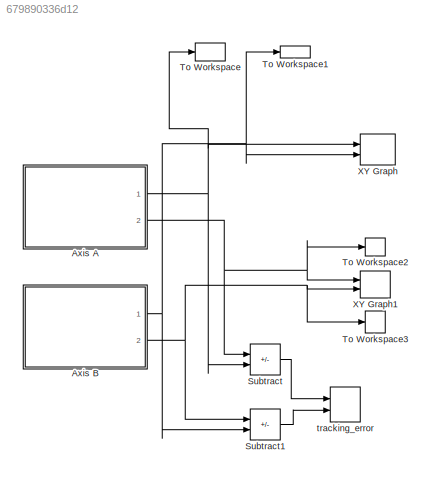
MODEL slx_679890336d12
KIND model
CONFIG AbsTol = auto
CONFIG EnableMultiTasking = off
CONFIG FixedStep = Ts
CONFIG MaxStep = auto
CONFIG MinStep = auto
CONFIG RelTol = 1000000
CONFIG SampleTimeConstraint = Unconstrained
CONFIG SolverName = FixedStepAuto
CONFIG StartTime = 0.0
CONFIG StopTime = 20
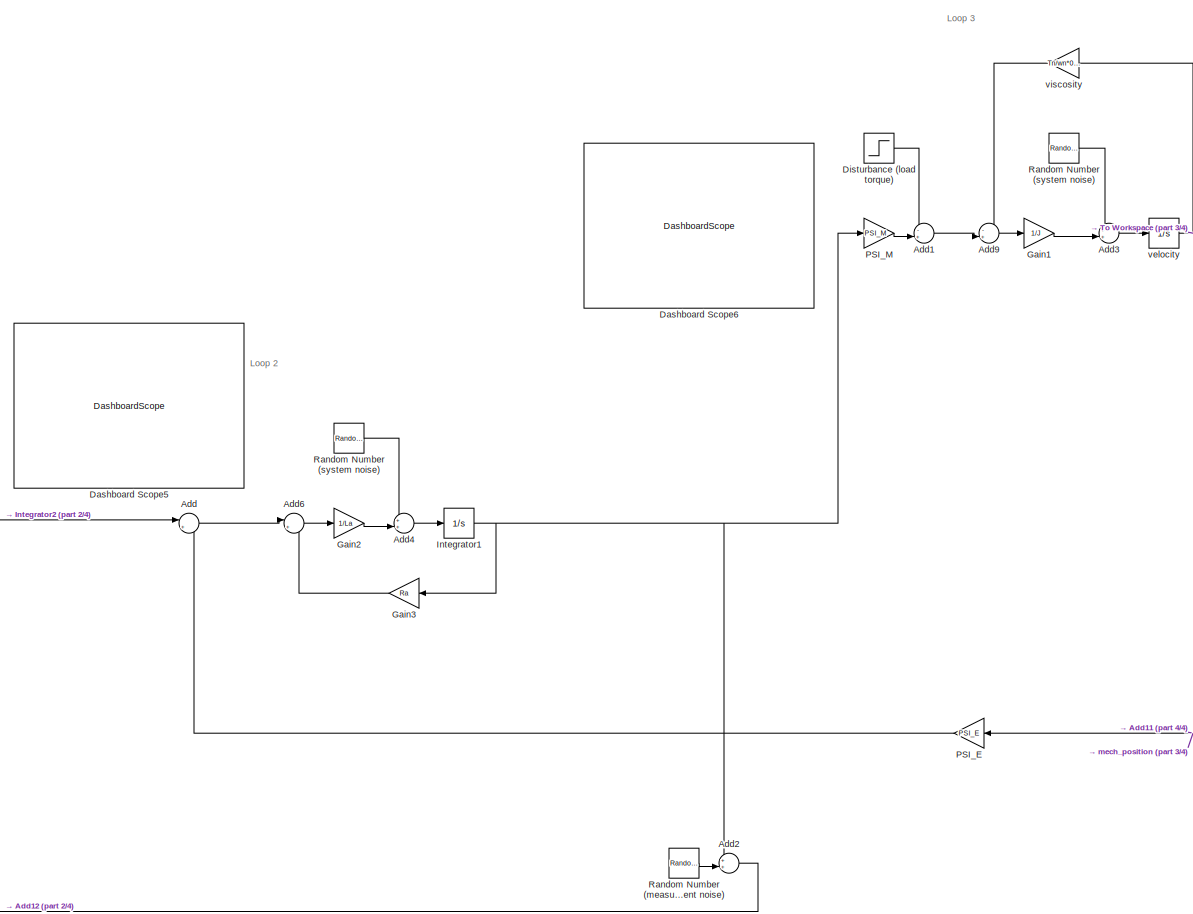
[diagram: Axis A - part 1/4, center side, full height]
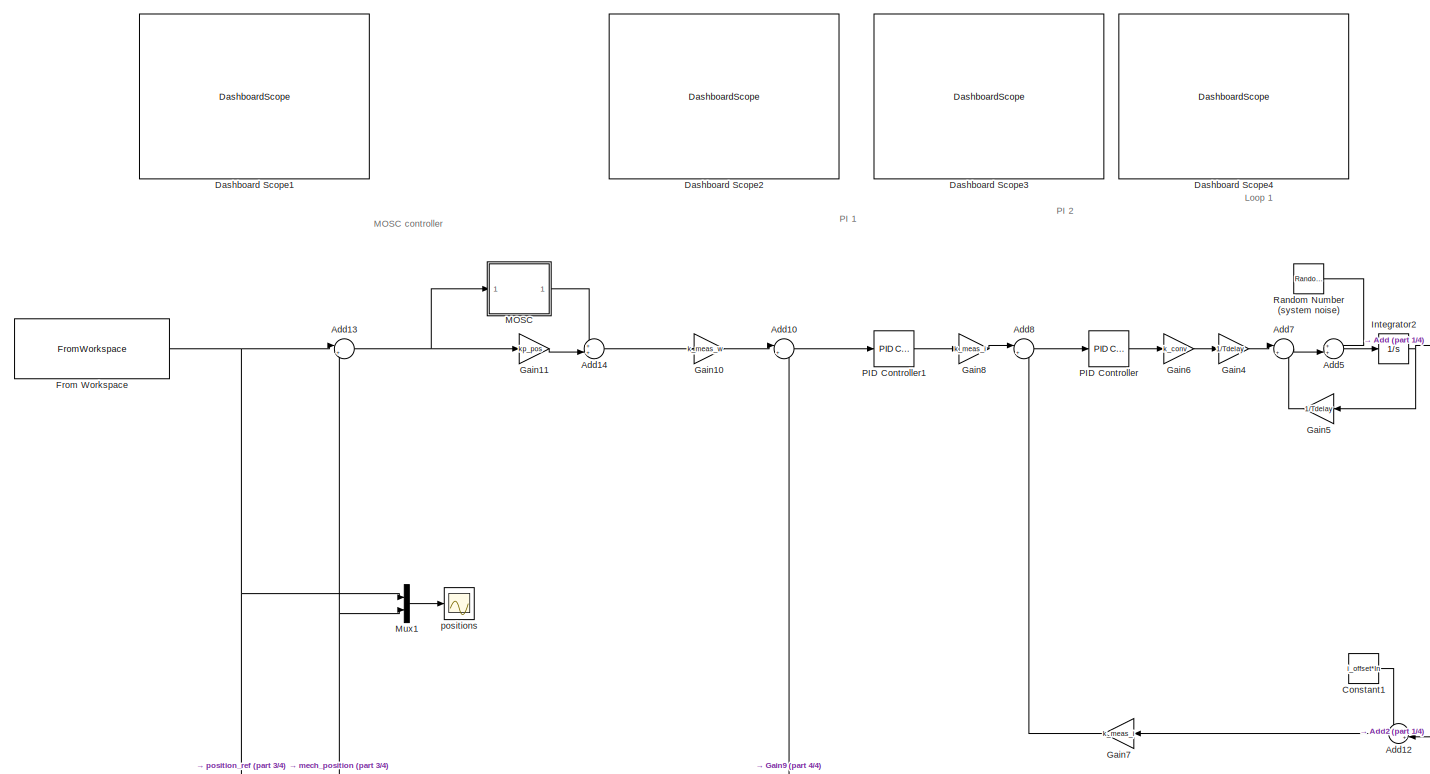
[diagram: Axis A - part 2/4, middle left region]
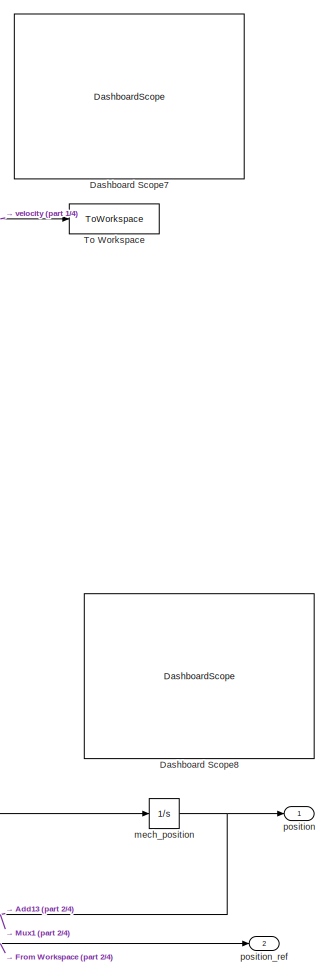
[diagram: Axis A - part 3/4, right side, full height]
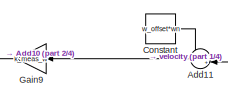
[diagram: Axis A - part 4/4, bottom center region]
BLOCK [SubSystem] Axis A
  Ports = [0, 2]
  RequestExecContextInheritance = off
BLOCK [Sum] Axis A/Add
  Inputs = |+-
  Ports = [2, 1]
BLOCK [Sum] Axis A/Add1
  Inputs = -+|
  Ports = [2, 1]
BLOCK [Sum] Axis A/Add10
  Inputs = |+-
  Ports = [2, 1]
BLOCK [Sum] Axis A/Add11
  Inputs = ++|
  NameLocation = top
  Ports = [2, 1]
BLOCK [Sum] Axis A/Add12
  Inputs = ++|
  NameLocation = top
  Ports = [2, 1]
BLOCK [Sum] Axis A/Add13
  Inputs = |+-
  Ports = [2, 1]
BLOCK [Sum] Axis A/Add14
  Inputs = ++|
  Ports = [2, 1]
BLOCK [Sum] Axis A/Add2
  Inputs = ++|
  Ports = [2, 1]
BLOCK [Sum] Axis A/Add3
  Inputs = ++|
  Ports = [2, 1]
BLOCK [Sum] Axis A/Add4
  Inputs = ++|
  Ports = [2, 1]
BLOCK [Sum] Axis A/Add5
  Inputs = ++|
  Ports = [2, 1]
BLOCK [Sum] Axis A/Add6
  Inputs = |+-
  Ports = [2, 1]
BLOCK [Sum] Axis A/Add7
  Inputs = |+-
  Ports = [2, 1]
BLOCK [Sum] Axis A/Add8
  Inputs = |+-
  Ports = [2, 1]
BLOCK [Sum] Axis A/Add9
  Inputs = -+|
  Ports = [2, 1]
BLOCK [Constant] Axis A/Constant
  Value = w_offset*wn
BLOCK [Constant] Axis A/Constant1
  Value = i_offset*In
BLOCK [DashboardScope] Axis A/Dashboard Scope1
BLOCK [DashboardScope] Axis A/Dashboard Scope2
BLOCK [DashboardScope] Axis A/Dashboard Scope3
BLOCK [DashboardScope] Axis A/Dashboard Scope4
BLOCK [DashboardScope] Axis A/Dashboard Scope5
BLOCK [DashboardScope] Axis A/Dashboard Scope6
BLOCK [DashboardScope] Axis A/Dashboard Scope7
BLOCK [DashboardScope] Axis A/Dashboard Scope8
BLOCK [Step] Axis A/Disturbance (load torque)
  After = 0
  SampleTime = 0
  Time = 0
BLOCK [FromWorkspace] Axis A/From Workspace
  OutputAfterFinalValue = Setting to zero
  VariableName = [Time, X]
BLOCK [Gain] Axis A/Gain1
  Gain = 1/J
BLOCK [Gain] Axis A/Gain10
  Gain = k_meas_w
BLOCK [Gain] Axis A/Gain11
  Gain = kp_pos
BLOCK [Gain] Axis A/Gain2
  Gain = 1/La
BLOCK [Gain] Axis A/Gain3
  Gain = Ra
  NameLocation = top
BLOCK [Gain] Axis A/Gain4
  Gain = 1/Tdelay
BLOCK [Gain] Axis A/Gain5
  Gain = 1/Tdelay
  NameLocation = top
BLOCK [Gain] Axis A/Gain6
  Gain = k_conv
BLOCK [Gain] Axis A/Gain7
  Gain = k_meas_i
  NameLocation = top
BLOCK [Gain] Axis A/Gain8
  Gain = k_meas_i
BLOCK [Gain] Axis A/Gain9
  Gain = k_meas_w
  NameLocation = top
BLOCK [Integrator] Axis A/Integrator1
  Ports = [1, 1]
BLOCK [Integrator] Axis A/Integrator2
  Ports = [1, 1]
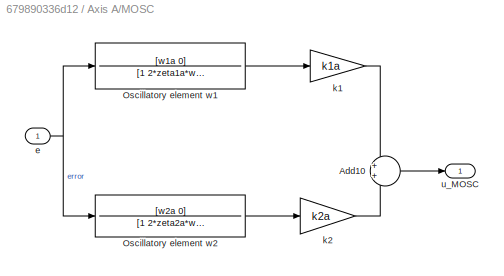
BLOCK [SubSystem] Axis A/MOSC
  Ports = [1, 1]
  RequestExecContextInheritance = off
BLOCK [Sum] Axis A/MOSC/Add10
  Ports = [2, 1]
BLOCK [TransferFcn] Axis A/MOSC/Oscillatory element w1
  Denominator = [1 2*zeta1a*w1a w1a^2]
  NameLocation = top
  Numerator = [w1a 0]
BLOCK [TransferFcn] Axis A/MOSC/Oscillatory element w2
  Denominator = [1 2*zeta2a*w2a w2a^2]
  NameLocation = top
  Numerator = [w2a 0]
BLOCK [Inport] Axis A/MOSC/e
BLOCK [Gain] Axis A/MOSC/k1
  Gain = k1a
BLOCK [Gain] Axis A/MOSC/k2
  Gain = k2a
BLOCK [Outport] Axis A/MOSC/u_MOSC
BLOCK [Mux] Axis A/Mux1
  DisplayOption = bar
  Inputs = 2
  Ports = [2, 1]
BLOCK [Reference] Axis A/PID Controller  REF=slpidlib/PID Controller
  Ports = [1, 1]
  SourceBlock = slpidlib/PID Controller
  SourceProductBaseCode = SL
  SourceType = PID 1dof
BLOCK [Reference] Axis A/PID Controller1  REF=slpidlib/PID Controller
  Ports = [1, 1]
  SourceBlock = slpidlib/PID Controller
  SourceProductBaseCode = SL
  SourceType = PID 1dof
BLOCK [Gain] Axis A/PSI_E
  Gain = PSI_E
  NameLocation = top
BLOCK [Gain] Axis A/PSI_M
  Gain = PSI_M
BLOCK [RandomNumber] Axis A/Random Number (measurement noise)
  SampleTime = Ts
  Seed = rand_seed_4
  Variance = v_i_a*c
BLOCK [RandomNumber] Axis A/Random Number (system   noise)
  SampleTime = Ts
  Seed = rand_seed_3
  Variance = w_omega_m*c
BLOCK [RandomNumber] Axis A/Random Number (system  noise)
  SampleTime = Ts
  Seed = rand_seed_1
  Variance = w_u_a*c
BLOCK [RandomNumber] Axis A/Random Number (system noise)
  SampleTime = Ts
  Seed = rand_seed_2
  Variance = w_i_a*c
BLOCK [ToWorkspace] Axis A/To Workspace
  FixptAsFi = on
  MaxDataPoints = inf
  Ports = [1]
  SampleTime = -1
  SaveFormat = Timeseries
  VariableName = x_velocity
BLOCK [Integrator] Axis A/mech_position
  InitialCondition = axis_A_init
  Ports = [1, 1]
BLOCK [Outport] Axis A/position
BLOCK [Outport] Axis A/position_ref
  Port = 2
BLOCK [Scope] Axis A/positions
  Floating = off
  NumInputPorts = 1
  Ports = [1]
  ScopeSpecificationString = Simulink.scopes.TimeScopeBlockCfg('CurrentConfiguration', extmgr.ConfigurationSet(extmgr.Configuration('Core','General UI',true),extmgr.Configuration('Core','Source UI',true),extmgr.Configuration('Sources','WiredSimulink',true,'DataLoggingSaveFormat','StructureWithTime','DataLoggingDecimation','1','DataLoggingDecimateData',true,'DataLoggingVariableName','ScopeData1'),extmgr.Configuration('Visuals'...<+1786ch>
BLOCK [Integrator] Axis A/velocity
  Ports = [1, 1]
BLOCK [Gain] Axis A/viscosity
  Gain = Tn/wn*0.3
  NameLocation = top
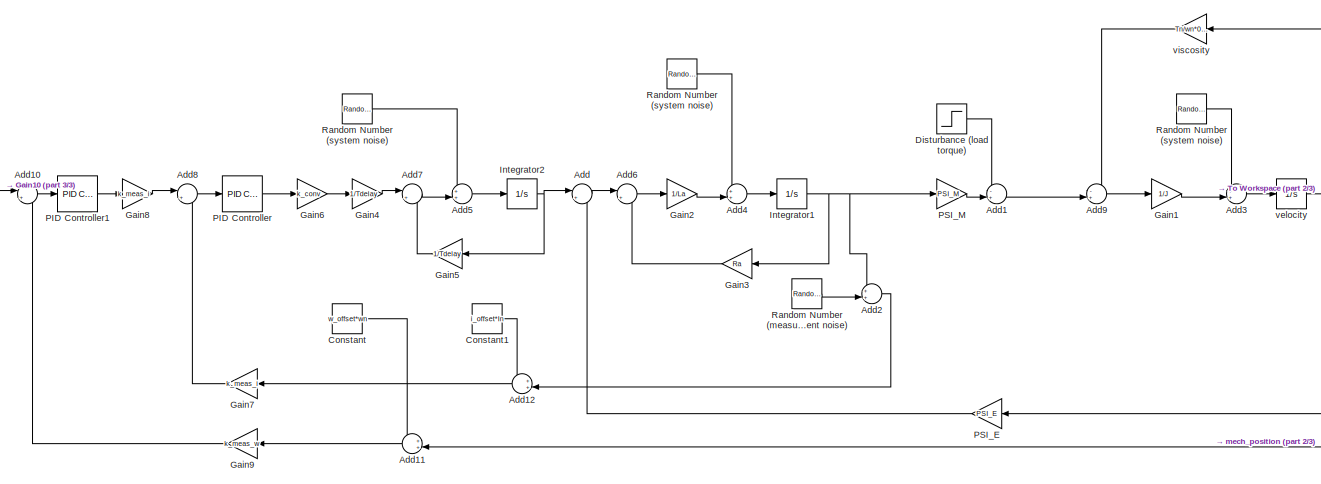
[diagram: Axis B - part 1/3, center side, full height]
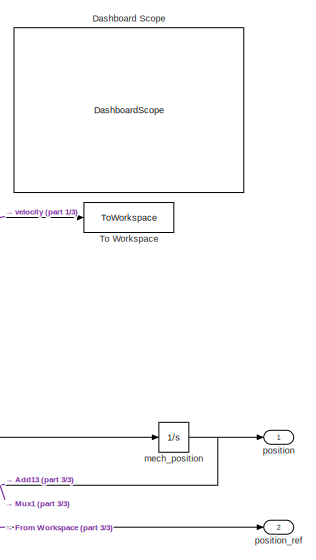
[diagram: Axis B - part 2/3, right side, full height]
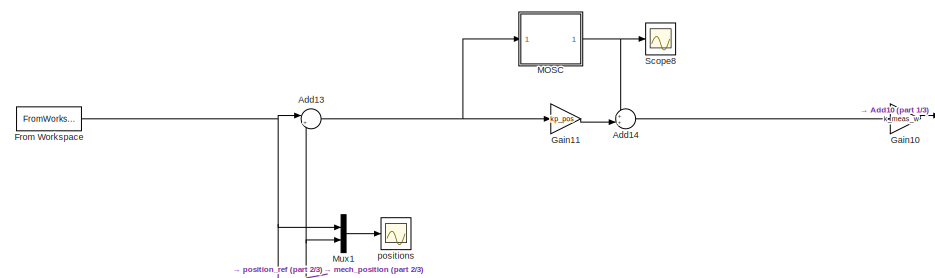
[diagram: Axis B - part 3/3, middle left region]
BLOCK [SubSystem] Axis B
  Ports = [0, 2]
  RequestExecContextInheritance = off
BLOCK [Sum] Axis B/Add
  Inputs = |+-
  Ports = [2, 1]
BLOCK [Sum] Axis B/Add1
  Inputs = -+|
  Ports = [2, 1]
BLOCK [Sum] Axis B/Add10
  Inputs = |+-
  Ports = [2, 1]
BLOCK [Sum] Axis B/Add11
  Inputs = ++|
  NameLocation = top
  Ports = [2, 1]
BLOCK [Sum] Axis B/Add12
  Inputs = ++|
  NameLocation = top
  Ports = [2, 1]
BLOCK [Sum] Axis B/Add13
  Inputs = |+-
  Ports = [2, 1]
BLOCK [Sum] Axis B/Add14
  Inputs = ++|
  Ports = [2, 1]
BLOCK [Sum] Axis B/Add2
  Inputs = ++|
  Ports = [2, 1]
BLOCK [Sum] Axis B/Add3
  Inputs = ++|
  Ports = [2, 1]
BLOCK [Sum] Axis B/Add4
  Inputs = ++|
  Ports = [2, 1]
BLOCK [Sum] Axis B/Add5
  Inputs = ++|
  Ports = [2, 1]
BLOCK [Sum] Axis B/Add6
  Inputs = |+-
  Ports = [2, 1]
BLOCK [Sum] Axis B/Add7
  Inputs = |+-
  Ports = [2, 1]
BLOCK [Sum] Axis B/Add8
  Inputs = |+-
  Ports = [2, 1]
BLOCK [Sum] Axis B/Add9
  Inputs = -+|
  Ports = [2, 1]
BLOCK [Constant] Axis B/Constant
  Value = w_offset*wn
BLOCK [Constant] Axis B/Constant1
  Value = i_offset*In
BLOCK [DashboardScope] Axis B/Dashboard Scope
BLOCK [Step] Axis B/Disturbance (load torque)
  After = 0
  SampleTime = 0
  Time = 0
BLOCK [FromWorkspace] Axis B/From Workspace
  OutputAfterFinalValue = Setting to zero
  VariableName = [Time, Y]
BLOCK [Gain] Axis B/Gain1
  Gain = 1/J
BLOCK [Gain] Axis B/Gain10
  Gain = k_meas_w
BLOCK [Gain] Axis B/Gain11
  Gain = kp_pos
BLOCK [Gain] Axis B/Gain2
  Gain = 1/La
BLOCK [Gain] Axis B/Gain3
  Gain = Ra
  NameLocation = top
BLOCK [Gain] Axis B/Gain4
  Gain = 1/Tdelay
BLOCK [Gain] Axis B/Gain5
  Gain = 1/Tdelay
  NameLocation = top
BLOCK [Gain] Axis B/Gain6
  Gain = k_conv
BLOCK [Gain] Axis B/Gain7
  Gain = k_meas_i
  NameLocation = top
BLOCK [Gain] Axis B/Gain8
  Gain = k_meas_i
BLOCK [Gain] Axis B/Gain9
  Gain = k_meas_w
  NameLocation = top
BLOCK [Integrator] Axis B/Integrator1
  Ports = [1, 1]
BLOCK [Integrator] Axis B/Integrator2
  Ports = [1, 1]
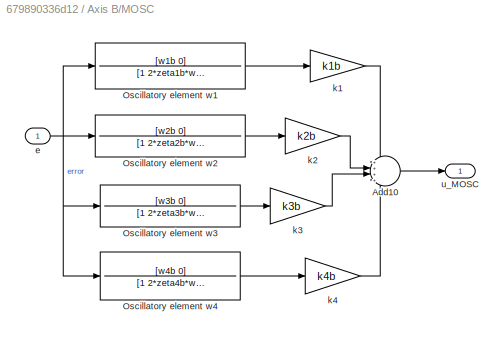
BLOCK [SubSystem] Axis B/MOSC
  Ports = [1, 1]
  RequestExecContextInheritance = off
BLOCK [Sum] Axis B/MOSC/Add10
  Inputs = ++++
  Ports = [4, 1]
BLOCK [TransferFcn] Axis B/MOSC/Oscillatory element w1
  Denominator = [1 2*zeta1b*w1b w1b^2]
  NameLocation = top
  Numerator = [w1b 0]
BLOCK [TransferFcn] Axis B/MOSC/Oscillatory element w2
  Denominator = [1 2*zeta2b*w2b w2b^2]
  NameLocation = top
  Numerator = [w2b 0]
BLOCK [TransferFcn] Axis B/MOSC/Oscillatory element w3
  Denominator = [1 2*zeta3b*w3b w3b^2]
  NameLocation = top
  Numerator = [w3b 0]
BLOCK [TransferFcn] Axis B/MOSC/Oscillatory element w4
  Denominator = [1 2*zeta4b*w4b w4b^2]
  NameLocation = top
  Numerator = [w4b 0]
BLOCK [Inport] Axis B/MOSC/e
BLOCK [Gain] Axis B/MOSC/k1
  Gain = k1b
BLOCK [Gain] Axis B/MOSC/k2
  Gain = k2b
BLOCK [Gain] Axis B/MOSC/k3
  Gain = k3b
BLOCK [Gain] Axis B/MOSC/k4
  Gain = k4b
BLOCK [Outport] Axis B/MOSC/u_MOSC
BLOCK [Mux] Axis B/Mux1
  DisplayOption = bar
  Inputs = 2
  Ports = [2, 1]
BLOCK [Reference] Axis B/PID Controller  REF=slpidlib/PID Controller
  Ports = [1, 1]
  SourceBlock = slpidlib/PID Controller
  SourceProductBaseCode = SL
  SourceType = PID 1dof
BLOCK [Reference] Axis B/PID Controller1  REF=slpidlib/PID Controller
  Ports = [1, 1]
  SourceBlock = slpidlib/PID Controller
  SourceProductBaseCode = SL
  SourceType = PID 1dof
BLOCK [Gain] Axis B/PSI_E
  Gain = PSI_E
  NameLocation = top
BLOCK [Gain] Axis B/PSI_M
  Gain = PSI_M
BLOCK [RandomNumber] Axis B/Random Number (measurement noise)
  SampleTime = Ts
  Seed = rand_seed_4
  Variance = v_i_a*c
BLOCK [RandomNumber] Axis B/Random Number (system   noise)
  SampleTime = Ts
  Seed = rand_seed_3
  Variance = w_omega_m*c
BLOCK [RandomNumber] Axis B/Random Number (system  noise)
  SampleTime = Ts
  Seed = rand_seed_1
  Variance = w_u_a*c
BLOCK [RandomNumber] Axis B/Random Number (system noise)
  SampleTime = Ts
  Seed = rand_seed_2
  Variance = w_i_a*c
BLOCK [Scope] Axis B/Scope8
  Floating = off
  NumInputPorts = 1
  Ports = [1]
  ScopeSpecificationString = Simulink.scopes.TimeScopeBlockCfg('CurrentConfiguration', extmgr.ConfigurationSet(extmgr.Configuration('Core','General UI',true),extmgr.Configuration('Core','Source UI',true),extmgr.Configuration('Sources','WiredSimulink',true,'DataLoggingVariableName','ScopeData1','DataLoggingLimitDataPoints',true,'DataLoggingSaveFormat','Array','DataLoggingDecimation','1','DataLoggingDecimateData',true),extmgr.C...<+1521ch>
BLOCK [ToWorkspace] Axis B/To Workspace
  FixptAsFi = on
  MaxDataPoints = inf
  Ports = [1]
  SampleTime = -1
  SaveFormat = Timeseries
  VariableName = y_velocity
BLOCK [Integrator] Axis B/mech_position
  InitialCondition = axis_B_init
  Ports = [1, 1]
BLOCK [Outport] Axis B/position
BLOCK [Outport] Axis B/position_ref
  Port = 2
BLOCK [Scope] Axis B/positions
  Floating = off
  NumInputPorts = 1
  Ports = [1]
  ScopeSpecificationString = Simulink.scopes.TimeScopeBlockCfg('CurrentConfiguration', extmgr.ConfigurationSet(extmgr.Configuration('Core','General UI',true),extmgr.Configuration('Core','Source UI',true),extmgr.Configuration('Sources','WiredSimulink',true,'DataLoggingSaveFormat','StructureWithTime','DataLoggingDecimation','1','DataLoggingDecimateData',true,'DataLoggingVariableName','ScopeData1'),extmgr.Configuration('Visuals'...<+1755ch>
BLOCK [Integrator] Axis B/velocity
  Ports = [1, 1]
BLOCK [Gain] Axis B/viscosity
  Gain = Tn/wn*0.3
  NameLocation = top
BLOCK [Sum] Subtract
  IconShape = rectangular
  Inputs = +-
  Ports = [2, 1]
BLOCK [Sum] Subtract1
  IconShape = rectangular
  Inputs = +-
  Ports = [2, 1]
BLOCK [ToWorkspace] To Workspace
  MaxDataPoints = inf
  Ports = [1]
  SampleTime = -1
  Save2DSignal = 2-D array (concatenate along first dimension)
  VariableName = X1
BLOCK [ToWorkspace] To Workspace1
  MaxDataPoints = inf
  Ports = [1]
  SampleTime = -1
  Save2DSignal = 2-D array (concatenate along first dimension)
  VariableName = Y1
BLOCK [ToWorkspace] To Workspace2
  MaxDataPoints = inf
  Ports = [1]
  SampleTime = -1
  Save2DSignal = 2-D array (concatenate along first dimension)
  VariableName = X2
BLOCK [ToWorkspace] To Workspace3
  MaxDataPoints = inf
  Ports = [1]
  SampleTime = -1
  Save2DSignal = 2-D array (concatenate along first dimension)
  VariableName = Y2
BLOCK [Record] XY Graph
  CompatibilityTag = XY
  FileSettingsInternal = {"entries":[{"content":{"excelSettings":{"content":{},"type":"Streamout.ExcelSettings"}},"type":"Streamout.FileSettingStorage","uuid":"5dd5c6a3-9558-46e3-9c57-18c47edfeb62"}],"packageUris":["http://schema.mathworks.com/mf0/streamout_blocks/R2020a"],"version":"1.0"}
  Layout = [1 1]
  Ports = [2]
  SignalsInternal = {"entries":[{"content":{"signals":[{"content":{"blockPath":["TWIN/XY Graph"],"channel":[],"dimensions":[1],"domain":"TWIN/XY Graph","lineColor":"#a2142f","plots":[1],"port":1,"sid":[""],"signalID":483759,"signalName":"Axis A:1"},"type":"RecordBlkView.Signal","uuid":"e5131e20-f6b1-48ad-bb87-b3fb0198be33"},{"content":{"blockPath":["TWIN/XY Graph"],"channel":[],"dimensions":[1],"domain":"TWIN/XY Grap...<+353ch>
  VisualizationBindings = {"xyplotplugin":{"info":[{"series":[{"bindingParametersList":[{"parameter":"X-Axis","signalID":483759,"signalName":"Axis A:1"},{"parameter":"Y-Axis","signalID":483763,"signalName":"Axis B:1"}],"seriesID":45665}],"subplotID":1}]}}
BLOCK [Record] XY Graph1
  CompatibilityTag = XY
  FileSettingsInternal = {"entries":[{"content":{"excelSettings":{"content":{},"type":"Streamout.ExcelSettings"}},"type":"Streamout.FileSettingStorage","uuid":"d2fb6019-1089-4865-91d9-d366b06b0246"}],"packageUris":["http://schema.mathworks.com/mf0/streamout_blocks/R2020a"],"version":"1.0"}
  Layout = [1 1]
  Ports = [2]
  SignalsInternal = {"entries":[{"content":{"signals":[{"content":{"blockPath":["TWIN/XY Graph1"],"channel":[],"dimensions":[1],"domain":"TWIN/XY Graph1","lineColor":"#ff6929","plots":[],"port":1,"sid":[""],"signalID":483767,"signalName":"Axis A:2"},"type":"RecordBlkView.Signal","uuid":"f7357322-d349-4bee-9fb2-232c0e5c727e"},{"content":{"blockPath":["TWIN/XY Graph1"],"channel":[],"dimensions":[1],"domain":"TWIN/XY Gr...<+355ch>
  VisualizationBindings = {"xyplotplugin":{"info":[{"series":[],"subplotID":1}]}}
BLOCK [Record] tracking_error
  CompatibilityTag = XY
  FileSettingsInternal = {"entries":[{"content":{"excelSettings":{"content":{},"type":"Streamout.ExcelSettings"}},"type":"Streamout.FileSettingStorage","uuid":"68a8b464-3159-494c-9b13-e187b7557057"}],"packageUris":["http://schema.mathworks.com/mf0/streamout_blocks/R2020a"],"version":"1.0"}
  Layout = [1 1]
  Ports = [2]
  SignalsInternal = {"entries":[{"content":{"signals":[{"content":{"blockPath":["TWIN/tracking_error"],"channel":[],"dimensions":[1],"domain":"TWIN/tracking_error","lineColor":"#0072bd","plots":[],"port":1,"sid":[""],"signalID":483791,"signalName":"Subtract"},"type":"RecordBlkView.Signal","uuid":"10eded9b-e3ea-40dd-a408-67c9f9bb2562"},{"content":{"blockPath":["TWIN/tracking_error"],"channel":[],"dimensions":[1],"doma...<+376ch>
  VisualizationBindings = {"xyplotplugin":{"info":[{"series":[],"subplotID":1}]}}
  st = -1
ANNOTATION Axis A: Loop 1
ANNOTATION Axis A: Loop 2
ANNOTATION Axis A: Loop 3
ANNOTATION Axis A: MOSC controller
ANNOTATION Axis A: PI 1
ANNOTATION Axis A: PI 2
LINE Axis A/Add10:1 -> Axis A/PID Controller1:1
LINE Axis A/Add11:1 -> Axis A/Gain9:1
LINE Axis A/Add12:1 -> Axis A/Gain7:1
NET Axis A/Add13:1 -> Axis A/Gain11:1, Axis A/MOSC:1
LINE Axis A/Add14:1 -> Axis A/Gain10:1
LINE Axis A/Add1:1 -> Axis A/Add9:2
LINE Axis A/Add2:1 -> Axis A/Add12:2
LINE Axis A/Add3:1 -> Axis A/velocity:1
LINE Axis A/Add4:1 -> Axis A/Integrator1:1
LINE Axis A/Add5:1 -> Axis A/Integrator2:1
LINE Axis A/Add6:1 -> Axis A/Gain2:1
LINE Axis A/Add7:1 -> Axis A/Add5:2
LINE Axis A/Add8:1 -> Axis A/PID Controller:1
LINE Axis A/Add9:1 -> Axis A/Gain1:1
LINE Axis A/Add:1 -> Axis A/Add6:1
LINE Axis A/Constant1:1 -> Axis A/Add12:1
LINE Axis A/Constant:1 -> Axis A/Add11:1
LINE Axis A/Disturbance (load torque):1 -> Axis A/Add1:1
NET Axis A/From Workspace:1 -> Axis A/Add13:1, Axis A/Mux1:1, Axis A/position_ref:1
LINE Axis A/Gain10:1 -> Axis A/Add10:1
LINE Axis A/Gain11:1 -> Axis A/Add14:2
LINE Axis A/Gain1:1 -> Axis A/Add3:2
LINE Axis A/Gain2:1 -> Axis A/Add4:2
LINE Axis A/Gain3:1 -> Axis A/Add6:2
LINE Axis A/Gain4:1 -> Axis A/Add7:1
LINE Axis A/Gain5:1 -> Axis A/Add7:2
LINE Axis A/Gain6:1 -> Axis A/Gain4:1
LINE Axis A/Gain7:1 -> Axis A/Add8:2
LINE Axis A/Gain8:1 -> Axis A/Add8:1
LINE Axis A/Gain9:1 -> Axis A/Add10:2
NET Axis A/Integrator1:1 -> Axis A/Add2:1, Axis A/Gain3:1, Axis A/PSI_M:1
NET Axis A/Integrator2:1 -> Axis A/Add:1, Axis A/Gain5:1
LINE Axis A/MOSC/Add10:1 -> Axis A/MOSC/u_MOSC:1
LINE Axis A/MOSC/Oscillatory element w1:1 -> Axis A/MOSC/k1:1
LINE Axis A/MOSC/Oscillatory element w2:1 -> Axis A/MOSC/k2:1
NET Axis A/MOSC/e:1 -> Axis A/MOSC/Oscillatory element w1:1, Axis A/MOSC/Oscillatory element w2:1
LINE Axis A/MOSC/k1:1 -> Axis A/MOSC/Add10:1
LINE Axis A/MOSC/k2:1 -> Axis A/MOSC/Add10:2
LINE Axis A/MOSC:1 -> Axis A/Add14:1
LINE Axis A/Mux1:1 -> Axis A/positions:1
LINE Axis A/PID Controller1:1 -> Axis A/Gain8:1
LINE Axis A/PID Controller:1 -> Axis A/Gain6:1
LINE Axis A/PSI_E:1 -> Axis A/Add:2
LINE Axis A/PSI_M:1 -> Axis A/Add1:2
LINE Axis A/Random Number (measurement noise):1 -> Axis A/Add2:2
LINE Axis A/Random Number (system   noise):1 -> Axis A/Add3:1
LINE Axis A/Random Number (system  noise):1 -> Axis A/Add5:1
LINE Axis A/Random Number (system noise):1 -> Axis A/Add4:1
NET Axis A/mech_position:1 -> Axis A/Add13:2, Axis A/Mux1:2, Axis A/position:1
NET Axis A/velocity:1 -> Axis A/Add11:2, Axis A/PSI_E:1, Axis A/To Workspace:1, Axis A/mech_position:1, Axis A/viscosity:1
LINE Axis A/viscosity:1 -> Axis A/Add9:1
NET Axis A:1 -> Subtract:2, To Workspace:1, XY Graph:1
NET Axis A:2 -> Subtract:1, To Workspace2:1, XY Graph1:1
LINE Axis B/Add10:1 -> Axis B/PID Controller1:1
LINE Axis B/Add11:1 -> Axis B/Gain9:1
LINE Axis B/Add12:1 -> Axis B/Gain7:1
NET Axis B/Add13:1 -> Axis B/Gain11:1, Axis B/MOSC:1
LINE Axis B/Add14:1 -> Axis B/Gain10:1
LINE Axis B/Add1:1 -> Axis B/Add9:2
LINE Axis B/Add2:1 -> Axis B/Add12:2
LINE Axis B/Add3:1 -> Axis B/velocity:1
LINE Axis B/Add4:1 -> Axis B/Integrator1:1
LINE Axis B/Add5:1 -> Axis B/Integrator2:1
LINE Axis B/Add6:1 -> Axis B/Gain2:1
LINE Axis B/Add7:1 -> Axis B/Add5:2
LINE Axis B/Add8:1 -> Axis B/PID Controller:1
LINE Axis B/Add9:1 -> Axis B/Gain1:1
LINE Axis B/Add:1 -> Axis B/Add6:1
LINE Axis B/Constant1:1 -> Axis B/Add12:1
LINE Axis B/Constant:1 -> Axis B/Add11:1
LINE Axis B/Disturbance (load torque):1 -> Axis B/Add1:1
NET Axis B/From Workspace:1 -> Axis B/Add13:1, Axis B/Mux1:1, Axis B/position_ref:1
LINE Axis B/Gain10:1 -> Axis B/Add10:1
LINE Axis B/Gain11:1 -> Axis B/Add14:2
LINE Axis B/Gain1:1 -> Axis B/Add3:2
LINE Axis B/Gain2:1 -> Axis B/Add4:2
LINE Axis B/Gain3:1 -> Axis B/Add6:2
LINE Axis B/Gain4:1 -> Axis B/Add7:1
LINE Axis B/Gain5:1 -> Axis B/Add7:2
LINE Axis B/Gain6:1 -> Axis B/Gain4:1
LINE Axis B/Gain7:1 -> Axis B/Add8:2
LINE Axis B/Gain8:1 -> Axis B/Add8:1
LINE Axis B/Gain9:1 -> Axis B/Add10:2
NET Axis B/Integrator1:1 -> Axis B/Add2:1, Axis B/Gain3:1, Axis B/PSI_M:1
NET Axis B/Integrator2:1 -> Axis B/Add:1, Axis B/Gain5:1
LINE Axis B/MOSC/Add10:1 -> Axis B/MOSC/u_MOSC:1
LINE Axis B/MOSC/Oscillatory element w1:1 -> Axis B/MOSC/k1:1
LINE Axis B/MOSC/Oscillatory element w2:1 -> Axis B/MOSC/k2:1
LINE Axis B/MOSC/Oscillatory element w3:1 -> Axis B/MOSC/k3:1
LINE Axis B/MOSC/Oscillatory element w4:1 -> Axis B/MOSC/k4:1
NET Axis B/MOSC/e:1 -> Axis B/MOSC/Oscillatory element w1:1, Axis B/MOSC/Oscillatory element w2:1, Axis B/MOSC/Oscillatory element w3:1, Axis B/MOSC/Oscillatory element w4:1
LINE Axis B/MOSC/k1:1 -> Axis B/MOSC/Add10:1
LINE Axis B/MOSC/k2:1 -> Axis B/MOSC/Add10:2
LINE Axis B/MOSC/k3:1 -> Axis B/MOSC/Add10:3
LINE Axis B/MOSC/k4:1 -> Axis B/MOSC/Add10:4
NET Axis B/MOSC:1 -> Axis B/Add14:1, Axis B/Scope8:1
LINE Axis B/Mux1:1 -> Axis B/positions:1
LINE Axis B/PID Controller1:1 -> Axis B/Gain8:1
LINE Axis B/PID Controller:1 -> Axis B/Gain6:1
LINE Axis B/PSI_E:1 -> Axis B/Add:2
LINE Axis B/PSI_M:1 -> Axis B/Add1:2
LINE Axis B/Random Number (measurement noise):1 -> Axis B/Add2:2
LINE Axis B/Random Number (system   noise):1 -> Axis B/Add3:1
LINE Axis B/Random Number (system  noise):1 -> Axis B/Add5:1
LINE Axis B/Random Number (system noise):1 -> Axis B/Add4:1
NET Axis B/mech_position:1 -> Axis B/Add13:2, Axis B/Mux1:2, Axis B/position:1
NET Axis B/velocity:1 -> Axis B/Add11:2, Axis B/PSI_E:1, Axis B/To Workspace:1, Axis B/mech_position:1, Axis B/viscosity:1
LINE Axis B/viscosity:1 -> Axis B/Add9:1
NET Axis B:1 -> Subtract1:2, To Workspace1:1, XY Graph:2
NET Axis B:2 -> Subtract1:1, To Workspace3:1, XY Graph1:2
LINE Subtract1:1 -> tracking_error:2
LINE Subtract:1 -> tracking_error:1
note: NET lines group one-source signal fan-out (src -> all destinations, sorted); 1:1 wires keep LINE
